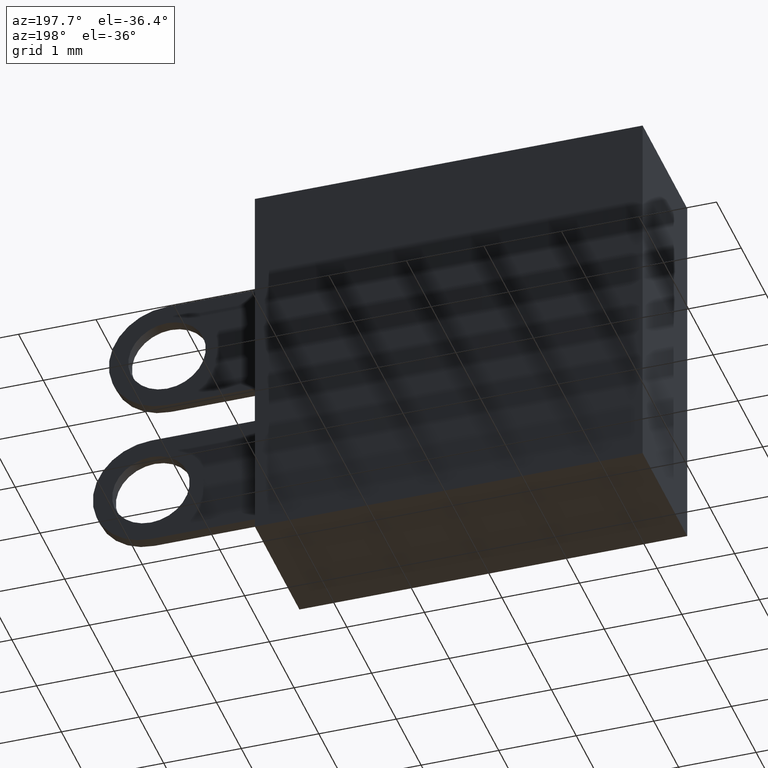
[diagram: clean part render]
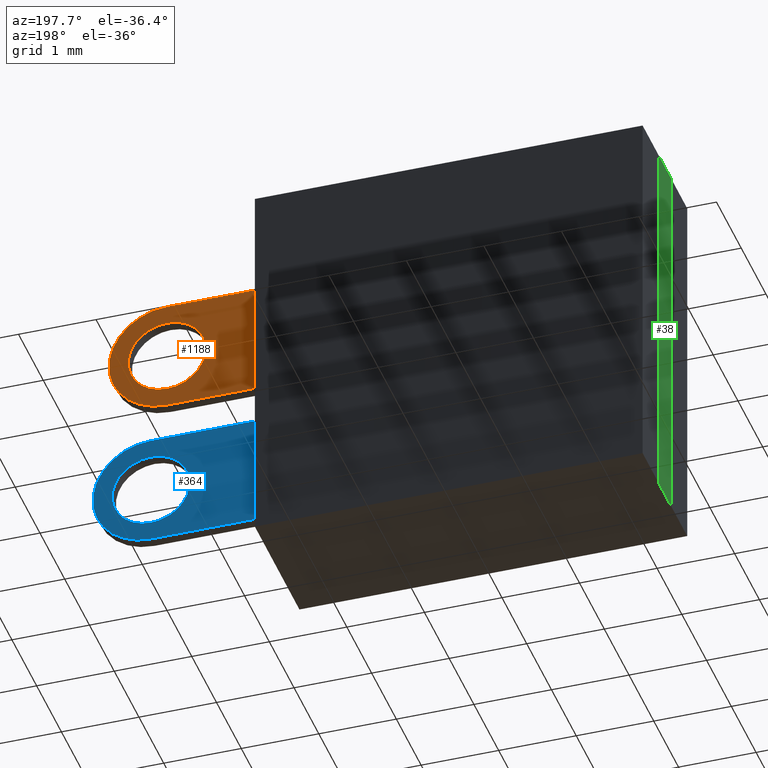
[diagram: same view with three faces highlighted in distinct colors, each labeled with its STEP entity id]
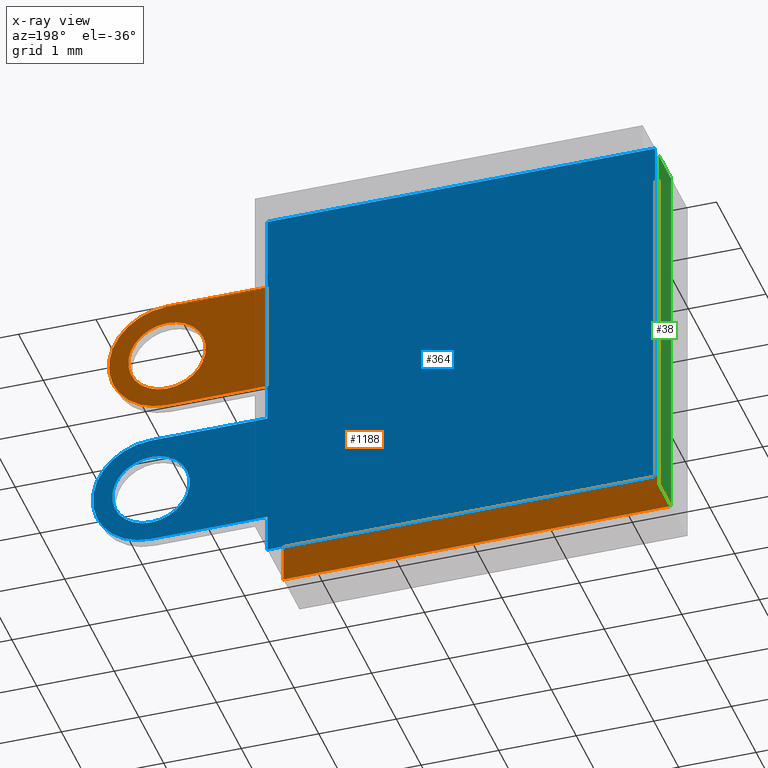
[diagram: x-ray of the same camera — body ghosted, the three highlighted faces saturated]
A machine part, auxiliary view with three faces highlighted in distinct colors.
The next image is the same camera in x-ray (body ghosted, the three faces saturated) — at least one of them is partly hidden behind the body in this view.
Their STEP definitions:

[orange] entity #1188 — the highlighted planar face has unit normal (0, -1, 0).
#7 = DIRECTION ( 'NONE',  ( 0.0000000000000000000, 0.0000000000000000000, -1.000000000000000000 ) ) ;
#12 = CARTESIAN_POINT ( 'NONE',  ( 4.000000000000000000, 0.0000000000000000000, 0.7500000000000001100 ) ) ;
#18 = LINE ( 'NONE', #749, #1134 ) ;
#29 = DIRECTION ( 'NONE',  ( -0.0000000000000000000, -0.0000000000000000000, 1.000000000000000000 ) ) ;
#31 = CARTESIAN_POINT ( 'NONE',  ( 4.000000000000000000, 0.0000000000000000000, 1.250000000000000000 ) ) ;
#56 = EDGE_CURVE ( 'NONE', #498, #57, #1337, .T. ) ;
#57 = VERTEX_POINT ( 'NONE', #255 ) ;
#71 = EDGE_LOOP ( 'NONE', ( #1207, #1031, #667, #817, #582, #827, #160, #1118 ) ) ;
#72 = AXIS2_PLACEMENT_3D ( 'NONE', #904, #1231, #1122 ) ;
#75 = AXIS2_PLACEMENT_3D ( 'NONE', #116, #732, #7 ) ;
#85 = ORIENTED_EDGE ( 'NONE', *, *, #94, .T. ) ;
#94 = EDGE_CURVE ( 'NONE', #188, #744, #473, .T. ) ;
#96 = EDGE_CURVE ( 'NONE', #1001, #342, #504, .T. ) ;
#105 = VERTEX_POINT ( 'NONE', #1183 ) ;
#116 = CARTESIAN_POINT ( 'NONE',  ( 4.000000000000000000, -0.0000000000000000000, 1.250000000000000000 ) ) ;
#160 = ORIENTED_EDGE ( 'NONE', *, *, #584, .F. ) ;
#188 = VERTEX_POINT ( 'NONE', #12 ) ;
#190 = CARTESIAN_POINT ( 'NONE',  ( 2.499999999999999600, -0.0000000000000000000, 2.000000000000000000 ) ) ;
#194 = VECTOR ( 'NONE', #251, 1000.000000000000000 ) ;
#200 = EDGE_CURVE ( 'NONE', #846, #1001, #643, .T. ) ;
#214 = EDGE_CURVE ( 'NONE', #105, #306, #442, .T. ) ;
#225 = DIRECTION ( 'NONE',  ( 0.0000000000000000000, 0.0000000000000000000, -1.000000000000000000 ) ) ;
#230 = VECTOR ( 'NONE', #861, 1000.000000000000000 ) ;
#251 = DIRECTION ( 'NONE',  ( -0.0000000000000000000, -0.0000000000000000000, 1.000000000000000000 ) ) ;
#255 = CARTESIAN_POINT ( 'NONE',  ( -2.499999999999999600, 0.0000000000000000000, 2.500000000000000000 ) ) ;
#256 = CARTESIAN_POINT ( 'NONE',  ( -2.499999999999999600, 0.0000000000000000000, -2.500000000000000000 ) ) ;
#273 = CARTESIAN_POINT ( 'NONE',  ( 4.000000000000000000, 0.0000000000000000000, 1.749999999999999800 ) ) ;
#306 = VERTEX_POINT ( 'NONE', #525 ) ;
#327 = VECTOR ( 'NONE', #1279, 1000.000000000000000 ) ;
#332 = CARTESIAN_POINT ( 'NONE',  ( 4.000000000000000000, 0.0000000000000000000, 1.250000000000000000 ) ) ;
#342 = VERTEX_POINT ( 'NONE', #781 ) ;
#368 = FACE_BOUND ( 'NONE', #377, .T. ) ;
#377 = EDGE_LOOP ( 'NONE', ( #85, #513 ) ) ;
#442 = CIRCLE ( 'NONE', #75, 0.7500000000000000000 ) ;
#461 = CARTESIAN_POINT ( 'NONE',  ( -2.499999999999999600, 0.0000000000000000000, 2.500000000000000000 ) ) ;
#473 = CIRCLE ( 'NONE', #930, 0.4999999999999998900 ) ;
#478 = VECTOR ( 'NONE', #487, 1000.000000000000000 ) ;
#487 = DIRECTION ( 'NONE',  ( -1.000000000000000000, -0.0000000000000000000, -0.0000000000000000000 ) ) ;
#492 = VECTOR ( 'NONE', #742, 1000.000000000000000 ) ;
#498 = VERTEX_POINT ( 'NONE', #524 ) ;
#504 = LINE ( 'NONE', #752, #194 ) ;
#513 = ORIENTED_EDGE ( 'NONE', *, *, #1018, .T. ) ;
#524 = CARTESIAN_POINT ( 'NONE',  ( 2.499999999999999600, -0.0000000000000000000, 2.500000000000000000 ) ) ;
#525 = CARTESIAN_POINT ( 'NONE',  ( 4.000000000000000000, 0.0000000000000000000, 2.000000000000000000 ) ) ;
#539 = CARTESIAN_POINT ( 'NONE',  ( 2.499999999999999600, -0.0000000000000000000, 0.5000000000000000000 ) ) ;
#582 = ORIENTED_EDGE ( 'NONE', *, *, #1264, .F. ) ;
#584 = EDGE_CURVE ( 'NONE', #342, #105, #593, .T. ) ;
#593 = LINE ( 'NONE', #539, #327 ) ;
#643 = LINE ( 'NONE', #843, #886 ) ;
#649 = DIRECTION ( 'NONE',  ( 0.0000000000000000000, -1.000000000000000000, 0.0000000000000000000 ) ) ;
#667 = ORIENTED_EDGE ( 'NONE', *, *, #56, .F. ) ;
#732 = DIRECTION ( 'NONE',  ( 0.0000000000000000000, -1.000000000000000000, 0.0000000000000000000 ) ) ;
#742 = DIRECTION ( 'NONE',  ( 0.0000000000000000000, 0.0000000000000000000, -1.000000000000000000 ) ) ;
#744 = VERTEX_POINT ( 'NONE', #273 ) ;
#749 = CARTESIAN_POINT ( 'NONE',  ( 2.499999999999999600, -0.0000000000000000000, 2.500000000000000000 ) ) ;
#752 = CARTESIAN_POINT ( 'NONE',  ( 2.499999999999999600, -0.0000000000000000000, 0.5000000000000000000 ) ) ;
#755 = LINE ( 'NONE', #855, #492 ) ;
#774 = LINE ( 'NONE', #1005, #478 ) ;
#781 = CARTESIAN_POINT ( 'NONE',  ( 2.499999999999999600, -0.0000000000000000000, 0.5000000000000000000 ) ) ;
#817 = ORIENTED_EDGE ( 'NONE', *, *, #876, .F. ) ;
#827 = ORIENTED_EDGE ( 'NONE', *, *, #214, .F. ) ;
#843 = CARTESIAN_POINT ( 'NONE',  ( -2.499999999999999600, 0.0000000000000000000, -2.500000000000000000 ) ) ;
#846 = VERTEX_POINT ( 'NONE', #256 ) ;
#855 = CARTESIAN_POINT ( 'NONE',  ( -2.499999999999999600, 0.0000000000000000000, 2.500000000000000000 ) ) ;
#861 = DIRECTION ( 'NONE',  ( -1.000000000000000000, 0.0000000000000000000, -0.0000000000000000000 ) ) ;
#876 = EDGE_CURVE ( 'NONE', #1187, #498, #18, .T. ) ;
#886 = VECTOR ( 'NONE', #1062, 1000.000000000000000 ) ;
#904 = CARTESIAN_POINT ( 'NONE',  ( 4.000000000000000000, 0.0000000000000000000, 1.250000000000000000 ) ) ;
#930 = AXIS2_PLACEMENT_3D ( 'NONE', #31, #649, #1288 ) ;
#935 = DIRECTION ( 'NONE',  ( 0.0000000000000000000, -1.000000000000000000, 0.0000000000000000000 ) ) ;
#955 = EDGE_CURVE ( 'NONE', #57, #846, #755, .T. ) ;
#969 = CIRCLE ( 'NONE', #1214, 0.4999999999999998900 ) ;
#1001 = VERTEX_POINT ( 'NONE', #1268 ) ;
#1005 = CARTESIAN_POINT ( 'NONE',  ( 2.499999999999999600, -0.0000000000000000000, 2.000000000000000000 ) ) ;
#1018 = EDGE_CURVE ( 'NONE', #744, #188, #969, .T. ) ;
#1031 = ORIENTED_EDGE ( 'NONE', *, *, #955, .F. ) ;
#1062 = DIRECTION ( 'NONE',  ( 1.000000000000000000, 0.0000000000000000000, 0.0000000000000000000 ) ) ;
#1118 = ORIENTED_EDGE ( 'NONE', *, *, #96, .F. ) ;
#1122 = DIRECTION ( 'NONE',  ( 0.0000000000000000000, -0.0000000000000000000, -1.000000000000000000 ) ) ;
#1126 = FACE_OUTER_BOUND ( 'NONE', #71, .T. ) ;
#1129 = PLANE ( 'NONE',  #72 ) ;
#1134 = VECTOR ( 'NONE', #29, 1000.000000000000000 ) ;
#1183 = CARTESIAN_POINT ( 'NONE',  ( 4.000000000000000000, -0.0000000000000000000, 0.5000000000000000000 ) ) ;
#1187 = VERTEX_POINT ( 'NONE', #190 ) ;
#1188 = ADVANCED_FACE ( 'NONE', ( #368, #1126 ), #1129, .F. ) ;
#1207 = ORIENTED_EDGE ( 'NONE', *, *, #200, .F. ) ;
#1214 = AXIS2_PLACEMENT_3D ( 'NONE', #332, #935, #225 ) ;
#1231 = DIRECTION ( 'NONE',  ( 0.0000000000000000000, -1.000000000000000000, 0.0000000000000000000 ) ) ;
#1264 = EDGE_CURVE ( 'NONE', #306, #1187, #774, .T. ) ;
#1268 = CARTESIAN_POINT ( 'NONE',  ( 2.499999999999999600, 0.0000000000000000000, -2.500000000000000000 ) ) ;
#1279 = DIRECTION ( 'NONE',  ( 1.000000000000000000, 0.0000000000000000000, 0.0000000000000000000 ) ) ;
#1288 = DIRECTION ( 'NONE',  ( 0.0000000000000000000, 0.0000000000000000000, -1.000000000000000000 ) ) ;
#1337 = LINE ( 'NONE', #461, #230 ) ;

[blue] entity #364 — the highlighted planar face has unit normal (0, 1, 0).
#10 = EDGE_CURVE ( 'NONE', #1012, #17, #489, .T. ) ;
#14 = ORIENTED_EDGE ( 'NONE', *, *, #1345, .F. ) ;
#17 = VERTEX_POINT ( 'NONE', #378 ) ;
#43 = EDGE_CURVE ( 'NONE', #958, #1048, #362, .T. ) ;
#45 = AXIS2_PLACEMENT_3D ( 'NONE', #74, #691, #1328 ) ;
#59 = ORIENTED_EDGE ( 'NONE', *, *, #314, .F. ) ;
#70 = DIRECTION ( 'NONE',  ( 1.000000000000000000, 0.0000000000000000000, 0.0000000000000000000 ) ) ;
#74 = CARTESIAN_POINT ( 'NONE',  ( 4.000000000000000000, 0.6500000000000000200, -1.250000000000000000 ) ) ;
#119 = VERTEX_POINT ( 'NONE', #352 ) ;
#134 = ORIENTED_EDGE ( 'NONE', *, *, #518, .F. ) ;
#139 = VERTEX_POINT ( 'NONE', #1283 ) ;
#140 = VECTOR ( 'NONE', #1037, 1000.000000000000000 ) ;
#165 = CARTESIAN_POINT ( 'NONE',  ( 2.499999999999999600, 0.6500000000000000200, 2.500000000000000000 ) ) ;
#176 = CARTESIAN_POINT ( 'NONE',  ( 2.499999999999999600, 0.6500000000000000200, -2.000000000000000000 ) ) ;
#177 = LINE ( 'NONE', #165, #659 ) ;
#182 = VECTOR ( 'NONE', #321, 1000.000000000000000 ) ;
#196 = VERTEX_POINT ( 'NONE', #1277 ) ;
#213 = VECTOR ( 'NONE', #881, 1000.000000000000000 ) ;
#221 = CARTESIAN_POINT ( 'NONE',  ( 4.000000000000000000, 0.6500000000000000200, -1.750000000000000700 ) ) ;
#272 = LINE ( 'NONE', #176, #509 ) ;
#290 = CARTESIAN_POINT ( 'NONE',  ( 2.499999999999999600, 0.6500000000000000200, -0.5000000000000000000 ) ) ;
#314 = EDGE_CURVE ( 'NONE', #1012, #766, #425, .T. ) ;
#319 = LINE ( 'NONE', #929, #182 ) ;
#321 = DIRECTION ( 'NONE',  ( 1.000000000000000000, 0.0000000000000000000, 0.0000000000000000000 ) ) ;
#322 = AXIS2_PLACEMENT_3D ( 'NONE', #464, #1087, #365 ) ;
#344 = ORIENTED_EDGE ( 'NONE', *, *, #1211, .T. ) ;
#348 = EDGE_CURVE ( 'NONE', #17, #139, #177, .T. ) ;
#352 = CARTESIAN_POINT ( 'NONE',  ( 2.499999999999999600, 0.6500000000000000200, -2.500000000000000000 ) ) ;
#356 = ORIENTED_EDGE ( 'NONE', *, *, #1116, .T. ) ;
#362 = CIRCLE ( 'NONE', #322, 0.5000000000000007800 ) ;
#364 = ADVANCED_FACE ( 'NONE', ( #896, #928 ), #395, .T. ) ;
#365 = DIRECTION ( 'NONE',  ( 0.0000000000000000000, 0.0000000000000000000, 1.000000000000000000 ) ) ;
#378 = CARTESIAN_POINT ( 'NONE',  ( 2.499999999999999600, 0.6500000000000000200, 2.500000000000000000 ) ) ;
#395 = PLANE ( 'NONE',  #1127 ) ;
#410 = DIRECTION ( 'NONE',  ( 0.0000000000000000000, 0.0000000000000000000, 1.000000000000000000 ) ) ;
#424 = DIRECTION ( 'NONE',  ( 0.0000000000000000000, 1.000000000000000000, 0.0000000000000000000 ) ) ;
#425 = LINE ( 'NONE', #1147, #140 ) ;
#464 = CARTESIAN_POINT ( 'NONE',  ( 4.000000000000000000, 0.6500000000000000200, -1.250000000000000000 ) ) ;
#482 = EDGE_CURVE ( 'NONE', #829, #196, #852, .T. ) ;
#489 = LINE ( 'NONE', #1096, #213 ) ;
#509 = VECTOR ( 'NONE', #683, 1000.000000000000000 ) ;
#510 = CARTESIAN_POINT ( 'NONE',  ( 4.000000000000000000, 0.6500000000000000200, -1.250000000000000000 ) ) ;
#518 = EDGE_CURVE ( 'NONE', #1048, #958, #1289, .T. ) ;
#545 = VECTOR ( 'NONE', #70, 1000.000000000000000 ) ;
#580 = VECTOR ( 'NONE', #1329, 1000.000000000000000 ) ;
#599 = CARTESIAN_POINT ( 'NONE',  ( 2.499999999999999600, 0.6500000000000000200, -2.000000000000000000 ) ) ;
#613 = ORIENTED_EDGE ( 'NONE', *, *, #482, .F. ) ;
#642 = CARTESIAN_POINT ( 'NONE',  ( 4.000000000000000000, 0.6500000000000000200, -0.7499999999999992200 ) ) ;
#659 = VECTOR ( 'NONE', #1010, 1000.000000000000000 ) ;
#665 = CARTESIAN_POINT ( 'NONE',  ( -2.499999999999999600, 0.6500000000000000200, -2.500000000000000000 ) ) ;
#683 = DIRECTION ( 'NONE',  ( 0.0000000000000000000, 0.0000000000000000000, -1.000000000000000000 ) ) ;
#691 = DIRECTION ( 'NONE',  ( 0.0000000000000000000, 1.000000000000000000, 0.0000000000000000000 ) ) ;
#750 = ORIENTED_EDGE ( 'NONE', *, *, #348, .T. ) ;
#766 = VERTEX_POINT ( 'NONE', #665 ) ;
#779 = ORIENTED_EDGE ( 'NONE', *, *, #1246, .T. ) ;
#829 = VERTEX_POINT ( 'NONE', #1194 ) ;
#852 = LINE ( 'NONE', #599, #580 ) ;
#881 = DIRECTION ( 'NONE',  ( 1.000000000000000000, 0.0000000000000000000, 0.0000000000000000000 ) ) ;
#896 = FACE_BOUND ( 'NONE', #1317, .T. ) ;
#928 = FACE_OUTER_BOUND ( 'NONE', #1284, .T. ) ;
#929 = CARTESIAN_POINT ( 'NONE',  ( -2.499999999999999600, 0.6500000000000000200, -2.500000000000000000 ) ) ;
#958 = VERTEX_POINT ( 'NONE', #642 ) ;
#964 = ORIENTED_EDGE ( 'NONE', *, *, #43, .F. ) ;
#1010 = DIRECTION ( 'NONE',  ( 0.0000000000000000000, 0.0000000000000000000, -1.000000000000000000 ) ) ;
#1012 = VERTEX_POINT ( 'NONE', #1035 ) ;
#1035 = CARTESIAN_POINT ( 'NONE',  ( -2.499999999999999600, 0.6500000000000000200, 2.500000000000000000 ) ) ;
#1037 = DIRECTION ( 'NONE',  ( 0.0000000000000000000, 0.0000000000000000000, -1.000000000000000000 ) ) ;
#1040 = DIRECTION ( 'NONE',  ( 0.0000000000000000000, -0.0000000000000000000, 1.000000000000000000 ) ) ;
#1041 = CARTESIAN_POINT ( 'NONE',  ( 4.000000000000000000, 0.6500000000000000200, -0.5000000000000000000 ) ) ;
#1048 = VERTEX_POINT ( 'NONE', #221 ) ;
#1056 = ORIENTED_EDGE ( 'NONE', *, *, #10, .T. ) ;
#1086 = VERTEX_POINT ( 'NONE', #1041 ) ;
#1087 = DIRECTION ( 'NONE',  ( 0.0000000000000000000, 1.000000000000000000, 0.0000000000000000000 ) ) ;
#1094 = LINE ( 'NONE', #290, #545 ) ;
#1096 = CARTESIAN_POINT ( 'NONE',  ( -2.499999999999999600, 0.6500000000000000200, 2.500000000000000000 ) ) ;
#1116 = EDGE_CURVE ( 'NONE', #1086, #196, #1312, .T. ) ;
#1127 = AXIS2_PLACEMENT_3D ( 'NONE', #1149, #424, #1040 ) ;
#1130 = DIRECTION ( 'NONE',  ( 0.0000000000000000000, 1.000000000000000000, 0.0000000000000000000 ) ) ;
#1147 = CARTESIAN_POINT ( 'NONE',  ( -2.499999999999999600, 0.6500000000000000200, 2.500000000000000000 ) ) ;
#1149 = CARTESIAN_POINT ( 'NONE',  ( 4.000000000000000000, 0.6500000000000000200, -1.250000000000000000 ) ) ;
#1194 = CARTESIAN_POINT ( 'NONE',  ( 2.499999999999999600, 0.6500000000000000200, -2.000000000000000000 ) ) ;
#1211 = EDGE_CURVE ( 'NONE', #139, #1086, #1094, .T. ) ;
#1224 = AXIS2_PLACEMENT_3D ( 'NONE', #510, #1130, #410 ) ;
#1246 = EDGE_CURVE ( 'NONE', #829, #119, #272, .T. ) ;
#1277 = CARTESIAN_POINT ( 'NONE',  ( 4.000000000000000000, 0.6500000000000000200, -2.000000000000000000 ) ) ;
#1283 = CARTESIAN_POINT ( 'NONE',  ( 2.499999999999999600, 0.6500000000000000200, -0.5000000000000000000 ) ) ;
#1284 = EDGE_LOOP ( 'NONE', ( #779, #14, #59, #1056, #750, #344, #356, #613 ) ) ;
#1289 = CIRCLE ( 'NONE', #45, 0.5000000000000007800 ) ;
#1312 = CIRCLE ( 'NONE', #1224, 0.7500000000000000000 ) ;
#1317 = EDGE_LOOP ( 'NONE', ( #964, #134 ) ) ;
#1328 = DIRECTION ( 'NONE',  ( 0.0000000000000000000, 0.0000000000000000000, 1.000000000000000000 ) ) ;
#1329 = DIRECTION ( 'NONE',  ( 1.000000000000000000, 0.0000000000000000000, 0.0000000000000000000 ) ) ;
#1345 = EDGE_CURVE ( 'NONE', #766, #119, #319, .T. ) ;

[green] entity #38 — the highlighted planar face has unit normal (1, 0, -0).
#38 = ADVANCED_FACE ( 'NONE', ( #753 ), #1206, .F. ) ;
#44 = CARTESIAN_POINT ( 'NONE',  ( -2.499999999999999600, 0.5000000000000000000, -2.499999999999999600 ) ) ;
#48 = DIRECTION ( 'NONE',  ( -0.0000000000000000000, -1.000000000000000000, -0.0000000000000000000 ) ) ;
#55 = VERTEX_POINT ( 'NONE', #358 ) ;
#60 = CARTESIAN_POINT ( 'NONE',  ( -2.499999999999999600, 0.0000000000000000000, -2.499999999999999600 ) ) ;
#121 = LINE ( 'NONE', #44, #375 ) ;
#265 = DIRECTION ( 'NONE',  ( 1.000000000000000000, 0.0000000000000000000, -1.734723475976807100E-016 ) ) ;
#358 = CARTESIAN_POINT ( 'NONE',  ( -2.499999999999998700, 0.5000000000000000000, 2.500000000000000400 ) ) ;
#375 = VECTOR ( 'NONE', #48, 1000.000000000000000 ) ;
#390 = AXIS2_PLACEMENT_3D ( 'NONE', #978, #265, #873 ) ;
#397 = VECTOR ( 'NONE', #723, 1000.000000000000000 ) ;
#417 = CARTESIAN_POINT ( 'NONE',  ( -2.499999999999998700, 0.0000000000000000000, 2.500000000000000400 ) ) ;
#423 = VERTEX_POINT ( 'NONE', #511 ) ;
#511 = CARTESIAN_POINT ( 'NONE',  ( -2.499999999999999600, 0.5000000000000000000, -2.499999999999999600 ) ) ;
#532 = ORIENTED_EDGE ( 'NONE', *, *, #802, .T. ) ;
#534 = EDGE_LOOP ( 'NONE', ( #1073, #1136, #769, #532 ) ) ;
#564 = LINE ( 'NONE', #1046, #1117 ) ;
#572 = LINE ( 'NONE', #1330, #1064 ) ;
#614 = EDGE_CURVE ( 'NONE', #423, #55, #564, .T. ) ;
#675 = VERTEX_POINT ( 'NONE', #60 ) ;
#707 = DIRECTION ( 'NONE',  ( 1.734723475976807100E-016, 0.0000000000000000000, 1.000000000000000000 ) ) ;
#723 = DIRECTION ( 'NONE',  ( 1.734723475976807100E-016, 0.0000000000000000000, 1.000000000000000000 ) ) ;
#753 = FACE_OUTER_BOUND ( 'NONE', #534, .T. ) ;
#769 = ORIENTED_EDGE ( 'NONE', *, *, #614, .F. ) ;
#793 = DIRECTION ( 'NONE',  ( -0.0000000000000000000, -1.000000000000000000, -0.0000000000000000000 ) ) ;
#802 = EDGE_CURVE ( 'NONE', #423, #675, #121, .T. ) ;
#826 = CARTESIAN_POINT ( 'NONE',  ( -2.499999999999999600, 0.0000000000000000000, -2.499999999999999600 ) ) ;
#873 = DIRECTION ( 'NONE',  ( -1.734723475976807100E-016, 0.0000000000000000000, -1.000000000000000000 ) ) ;
#932 = LINE ( 'NONE', #826, #397 ) ;
#978 = CARTESIAN_POINT ( 'NONE',  ( -2.499999999999999600, 0.5000000000000000000, -2.499999999999999600 ) ) ;
#1046 = CARTESIAN_POINT ( 'NONE',  ( -2.499999999999999600, 0.5000000000000000000, -2.499999999999999600 ) ) ;
#1064 = VECTOR ( 'NONE', #793, 1000.000000000000000 ) ;
#1067 = EDGE_CURVE ( 'NONE', #675, #1108, #932, .T. ) ;
#1073 = ORIENTED_EDGE ( 'NONE', *, *, #1067, .T. ) ;
#1108 = VERTEX_POINT ( 'NONE', #417 ) ;
#1117 = VECTOR ( 'NONE', #707, 1000.000000000000000 ) ;
#1136 = ORIENTED_EDGE ( 'NONE', *, *, #1233, .F. ) ;
#1206 = PLANE ( 'NONE',  #390 ) ;
#1233 = EDGE_CURVE ( 'NONE', #55, #1108, #572, .T. ) ;
#1330 = CARTESIAN_POINT ( 'NONE',  ( -2.499999999999998700, 0.5000000000000000000, 2.500000000000000400 ) ) ;